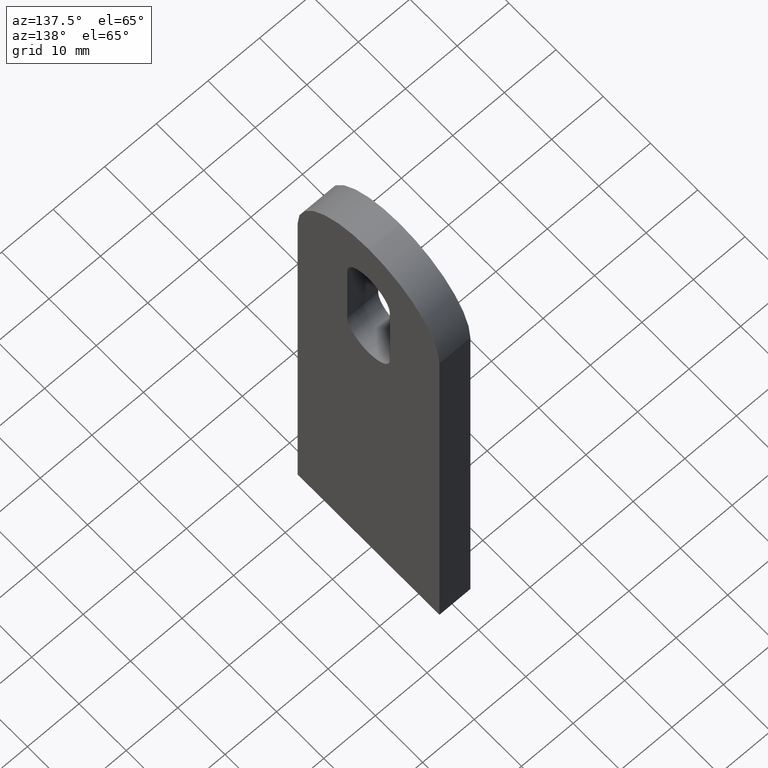
[diagram: clean part render]
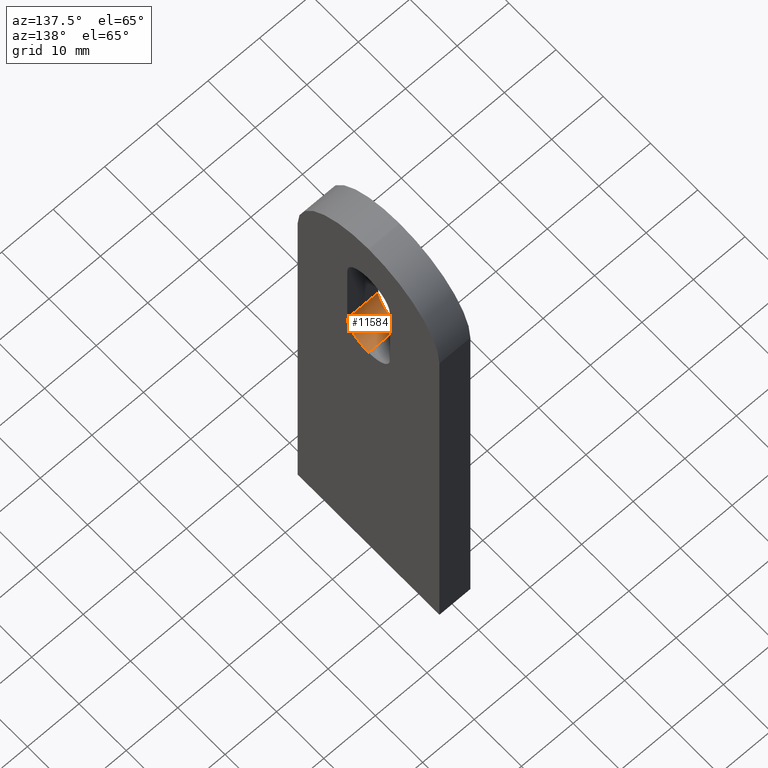
[diagram: same view with one face highlighted and labeled with its STEP entity id]
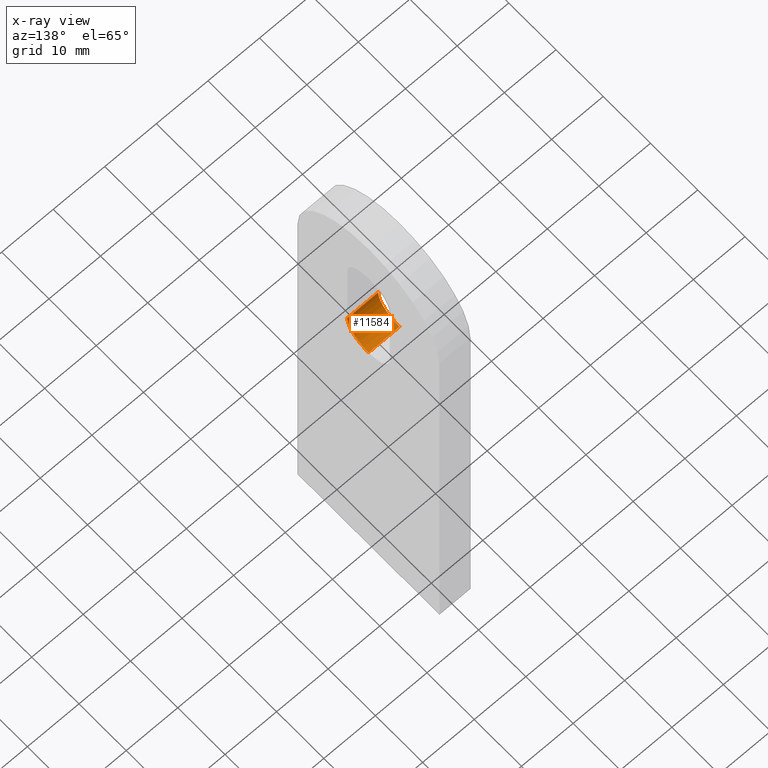
[diagram: x-ray of the same camera — body ghosted, the highlighted face saturated]
A machine part, auxiliary view. The second image highlights one B-rep face of the part: STEP entity #11584.
The next image is the same camera in x-ray: the body ghosted, the highlighted face saturated — about 5% of this face is hidden behind the body in this view.
In plain terms, the highlighted cylindrical surface (edge-blend (fillet) strip) has radius 4.5 mm, axis along (1, -0, -0).
Its self-contained STEP definition (entity closure, byte-faithful):
#789 = CARTESIAN_POINT ( 'NONE',  ( -3.000000000000000000, -4.499999999999998200, 69.50000000000000000 ) ) ;
#853 = LINE ( 'NONE', #7670, #12421 ) ;
#1194 = EDGE_CURVE ( 'NONE', #8572, #10705, #8983, .T. ) ;
#1399 = EDGE_CURVE ( 'NONE', #10705, #2229, #10054, .T. ) ;
#1678 = CIRCLE ( 'NONE', #8870, 4.500000000000003600 ) ;
#2229 = VERTEX_POINT ( 'NONE', #11192 ) ;
#2274 = DIRECTION ( 'NONE',  ( 0.0000000000000000000, 0.0000000000000000000, -1.000000000000000000 ) ) ;
#3024 = DIRECTION ( 'NONE',  ( 1.000000000000000000, 0.0000000000000000000, 0.0000000000000000000 ) ) ;
#3695 = VERTEX_POINT ( 'NONE', #10244 ) ;
#3811 = CYLINDRICAL_SURFACE ( 'NONE', #5546, 4.500000000000003600 ) ;
#4713 = EDGE_CURVE ( 'NONE', #3695, #2229, #1678, .T. ) ;
#5359 = CARTESIAN_POINT ( 'NONE',  ( -3.000000000000000000, 7.966394000823676000E-016, 65.00000000000000000 ) ) ;
#5546 = AXIS2_PLACEMENT_3D ( 'NONE', #11893, #12031, #2274 ) ;
#5628 = EDGE_LOOP ( 'NONE', ( #9843, #7485, #6653, #8545 ) ) ;
#6653 = ORIENTED_EDGE ( 'NONE', *, *, #7911, .T. ) ;
#6826 = VECTOR ( 'NONE', #10344, 1000.000000000000000 ) ;
#7485 = ORIENTED_EDGE ( 'NONE', *, *, #1194, .F. ) ;
#7511 = CARTESIAN_POINT ( 'NONE',  ( -3.000000000000000000, 7.966394000823676000E-016, 65.00000000000000000 ) ) ;
#7670 = CARTESIAN_POINT ( 'NONE',  ( -3.000000000000000000, -4.500000000000000000, 69.50000000000000000 ) ) ;
#7725 = DIRECTION ( 'NONE',  ( 1.000000000000000000, -0.0000000000000000000, -0.0000000000000000000 ) ) ;
#7911 = EDGE_CURVE ( 'NONE', #8572, #3695, #853, .T. ) ;
#8545 = ORIENTED_EDGE ( 'NONE', *, *, #4713, .T. ) ;
#8572 = VERTEX_POINT ( 'NONE', #789 ) ;
#8870 = AXIS2_PLACEMENT_3D ( 'NONE', #9780, #3024, #9920 ) ;
#8983 = CIRCLE ( 'NONE', #10414, 4.500000000000003600 ) ;
#9780 = CARTESIAN_POINT ( 'NONE',  ( 3.000000000000000000, 7.966394000823676000E-016, 69.50000000000000000 ) ) ;
#9843 = ORIENTED_EDGE ( 'NONE', *, *, #1399, .F. ) ;
#9920 = DIRECTION ( 'NONE',  ( 0.0000000000000000000, 0.0000000000000000000, -1.000000000000000000 ) ) ;
#10054 = LINE ( 'NONE', #7511, #6826 ) ;
#10244 = CARTESIAN_POINT ( 'NONE',  ( 3.000000000000000000, -4.500000000000000000, 69.50000000000000000 ) ) ;
#10344 = DIRECTION ( 'NONE',  ( 1.000000000000000000, -0.0000000000000000000, -0.0000000000000000000 ) ) ;
#10414 = AXIS2_PLACEMENT_3D ( 'NONE', #10723, #10944, #12013 ) ;
#10578 = FACE_OUTER_BOUND ( 'NONE', #5628, .T. ) ;
#10705 = VERTEX_POINT ( 'NONE', #5359 ) ;
#10723 = CARTESIAN_POINT ( 'NONE',  ( -3.000000000000000000, 7.966394000823676000E-016, 69.50000000000000000 ) ) ;
#10944 = DIRECTION ( 'NONE',  ( 1.000000000000000000, 0.0000000000000000000, 0.0000000000000000000 ) ) ;
#11192 = CARTESIAN_POINT ( 'NONE',  ( 3.000000000000000000, 7.966394000823676000E-016, 65.00000000000000000 ) ) ;
#11584 = ADVANCED_FACE ( 'NONE', ( #10578 ), #3811, .F. ) ;
#11893 = CARTESIAN_POINT ( 'NONE',  ( -3.000000000000000000, 7.966394000823676000E-016, 69.50000000000000000 ) ) ;
#12013 = DIRECTION ( 'NONE',  ( 0.0000000000000000000, 0.0000000000000000000, -1.000000000000000000 ) ) ;
#12031 = DIRECTION ( 'NONE',  ( 1.000000000000000000, -0.0000000000000000000, -0.0000000000000000000 ) ) ;
#12421 = VECTOR ( 'NONE', #7725, 1000.000000000000000 ) ;